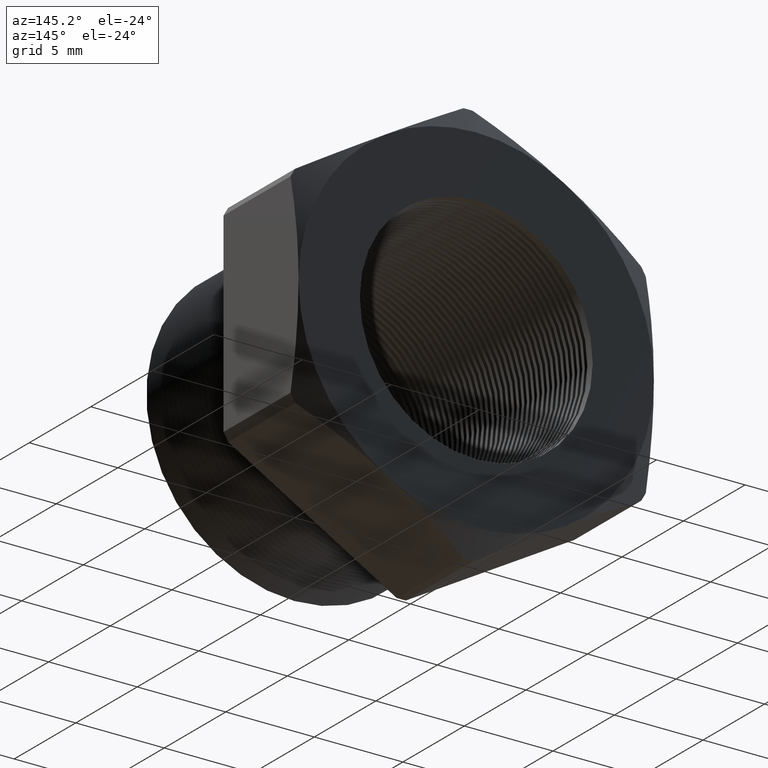
[diagram: clean part render]
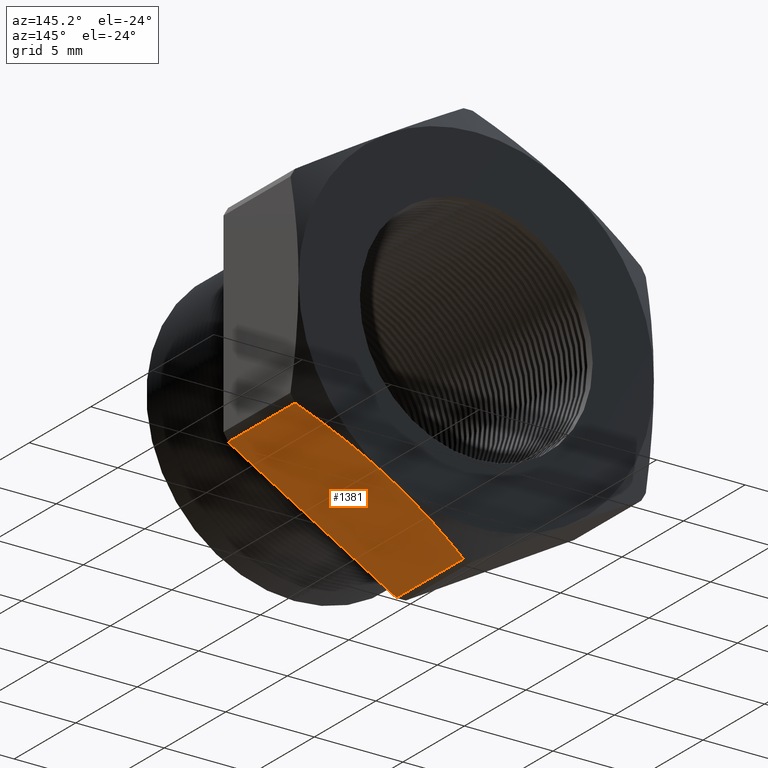
[diagram: same view with one face highlighted and labeled with its STEP entity id]
A machine part, auxiliary view. The second image highlights one B-rep face of the part: STEP entity #1381.
In plain terms, the highlighted planar face has unit normal (0.5, 0, -0.866).
Its self-contained STEP definition (entity closure, byte-faithful):
#1377 = EDGE_CURVE ( 'NONE', #8120, #8346, #4854, .T. ) ;
#1378 = ORIENTED_EDGE ( 'NONE', *, *, #1377, .T. ) ;
#1379 = ORIENTED_EDGE ( 'NONE', *, *, #8103, .F. ) ;
#1380 = EDGE_LOOP ( 'NONE', ( #1379, #1378, #1390, #1389, #1385 ) ) ;
#1381 = ADVANCED_FACE ( 'NONE', ( #4855 ), #4853, .T. ) ;
#1385 = ORIENTED_EDGE ( 'NONE', *, *, #1402, .F. ) ;
#1389 = ORIENTED_EDGE ( 'NONE', *, *, #7252, .F. ) ;
#1390 = ORIENTED_EDGE ( 'NONE', *, *, #1405, .T. ) ;
#1402 = EDGE_CURVE ( 'NONE', #8111, #3894, #4905, .T. ) ;
#1405 = EDGE_CURVE ( 'NONE', #8346, #6813, #4901, .T. ) ;
#3894 = VERTEX_POINT ( 'NONE', #7182 ) ;
#4847 = CARTESIAN_POINT ( 'NONE',  ( 0.1347800776656141200, 0.4051865378565922500, -0.3782913985381633500 ) ) ;
#4848 = CARTESIAN_POINT ( 'NONE',  ( 0.07238150130182599600, 0.3962912005447678500, -0.4143172333988461300 ) ) ;
#4849 = CARTESIAN_POINT ( 'NONE',  ( 0.04128338948296776700, 0.3897884989263422100, -0.4322717366287528500 ) ) ;
#4850 = CARTESIAN_POINT ( 'NONE',  ( 0.01026000026703703000, 0.3817680770869766300, -0.4501830987437449600 ) ) ;
#4851 = CARTESIAN_POINT ( 'NONE',  ( 1.446412442642387900E-016, 0.4075548905829479700, -0.4561067126598043500 ) ) ;
#4852 = AXIS2_PLACEMENT_3D ( 'NONE', #4851, #4897, #4896 ) ;
#4853 = PLANE ( 'NONE',  #4852 ) ;
#4854 = B_SPLINE_CURVE_WITH_KNOTS ( 'NONE', 3,
 ( #4850, #4849, #4848, #4847, #4900, #4899 ),
 .UNSPECIFIED., .F., .F.,
 ( 4, 2, 4 ),
 ( 2.335025902589980200E-007, 0.002760212844509913600, 0.005520192186429568100 ),
 .UNSPECIFIED. ) ;
#4855 = FACE_OUTER_BOUND ( 'NONE', #1380, .T. ) ;
#4896 = DIRECTION ( 'NONE',  ( -0.8660254037844388200, 0.0000000000000000000, -0.4999999999999998300 ) ) ;
#4897 = DIRECTION ( 'NONE',  ( 0.4999999999999998300, 0.0000000000000000000, -0.8660254037844388200 ) ) ;
#4899 = CARTESIAN_POINT ( 'NONE',  ( 0.1975000000000000400, 0.4075548905829479200, -0.3420800344948534700 ) ) ;
#4900 = CARTESIAN_POINT ( 'NONE',  ( 0.1660817377447930100, 0.4075548905829479200, -0.3602193766653674100 ) ) ;
#4901 = B_SPLINE_CURVE_WITH_KNOTS ( 'NONE', 3,
 ( #4956, #4955, #4954, #4953, #4952, #4951 ),
 .UNSPECIFIED., .F., .F.,
 ( 4, 2, 4 ),
 ( 0.005520192186429568100, 0.008258536476824111800, 0.01099688076721865500 ),
 .UNSPECIFIED. ) ;
#4902 = DIRECTION ( 'NONE',  ( 0.8660254037844388200, 0.0000000000000000000, 0.4999999999999998300 ) ) ;
#4903 = VECTOR ( 'NONE', #4902, 39.37007874015748100 ) ;
#4904 = CARTESIAN_POINT ( 'NONE',  ( 0.4337499999999999700, 0.1675548905829479500, -0.2056810333988043400 ) ) ;
#4905 = LINE ( 'NONE', #4904, #4903 ) ;
#4951 = CARTESIAN_POINT ( 'NONE',  ( 0.3847399997329629100, 0.3817680770869766300, -0.2339769702459618100 ) ) ;
#4952 = CARTESIAN_POINT ( 'NONE',  ( 0.3538644116588921000, 0.3897502881590466700, -0.2518029993319146300 ) ) ;
#4953 = CARTESIAN_POINT ( 'NONE',  ( 0.3227431943461728800, 0.3962764420413620300, -0.2697708425249217800 ) ) ;
#4954 = CARTESIAN_POINT ( 'NONE',  ( 0.2599588776186196900, 0.4052207272773963300, -0.3060193846884615200 ) ) ;
#4955 = CARTESIAN_POINT ( 'NONE',  ( 0.2286719793528691200, 0.4075548905829478600, -0.3240828838243009500 ) ) ;
#4956 = CARTESIAN_POINT ( 'NONE',  ( 0.1975000000000000400, 0.4075548905829479200, -0.3420800344948534700 ) ) ;
#6813 = VERTEX_POINT ( 'NONE', #7257 ) ;
#7182 = CARTESIAN_POINT ( 'NONE',  ( 0.3847399997329628000, 0.1675548905829479500, -0.2339769702459620100 ) ) ;
#7237 = DIRECTION ( 'NONE',  ( 0.0000000000000000000, 1.000000000000000000, 0.0000000000000000000 ) ) ;
#7238 = VECTOR ( 'NONE', #7237, 39.37007874015748100 ) ;
#7239 = CARTESIAN_POINT ( 'NONE',  ( 0.3847399997329629100, 0.0000000000000000000, -0.2339769702459618100 ) ) ;
#7240 = LINE ( 'NONE', #7239, #7238 ) ;
#7252 = EDGE_CURVE ( 'NONE', #3894, #6813, #7240, .T. ) ;
#7257 = CARTESIAN_POINT ( 'NONE',  ( 0.3847399997329629100, 0.3817680770869766300, -0.2339769702459618100 ) ) ;
#7337 = CARTESIAN_POINT ( 'NONE',  ( 0.01026000026703720500, 0.1675548905829479500, -0.4501830987437447900 ) ) ;
#7344 = DIRECTION ( 'NONE',  ( -0.0000000000000000000, -1.000000000000000000, -0.0000000000000000000 ) ) ;
#7345 = VECTOR ( 'NONE', #7344, 39.37007874015748100 ) ;
#7346 = CARTESIAN_POINT ( 'NONE',  ( 0.01026000026703699000, 0.0000000000000000000, -0.4501830987437449000 ) ) ;
#7347 = LINE ( 'NONE', #7346, #7345 ) ;
#7384 = CARTESIAN_POINT ( 'NONE',  ( 0.01026000026703703000, 0.3817680770869766300, -0.4501830987437449600 ) ) ;
#7753 = CARTESIAN_POINT ( 'NONE',  ( 0.1975000000000000400, 0.4075548905829479200, -0.3420800344948534700 ) ) ;
#8103 = EDGE_CURVE ( 'NONE', #8120, #8111, #7347, .T. ) ;
#8111 = VERTEX_POINT ( 'NONE', #7337 ) ;
#8120 = VERTEX_POINT ( 'NONE', #7384 ) ;
#8346 = VERTEX_POINT ( 'NONE', #7753 ) ;